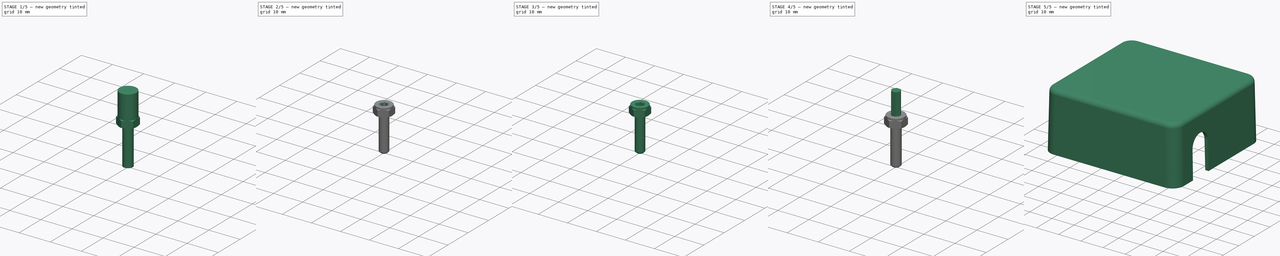
[diagram: build sequence overview — one tinted view per stage of 5, left to right]
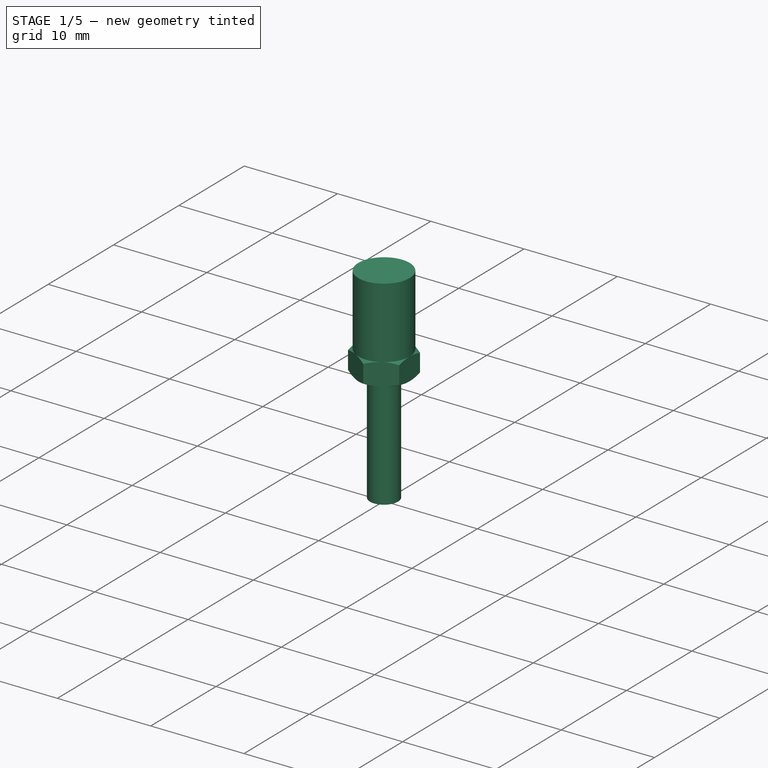
[diagram: stage 1 of 5 — iso view after this stage's code; geometry added in this stage tinted green]
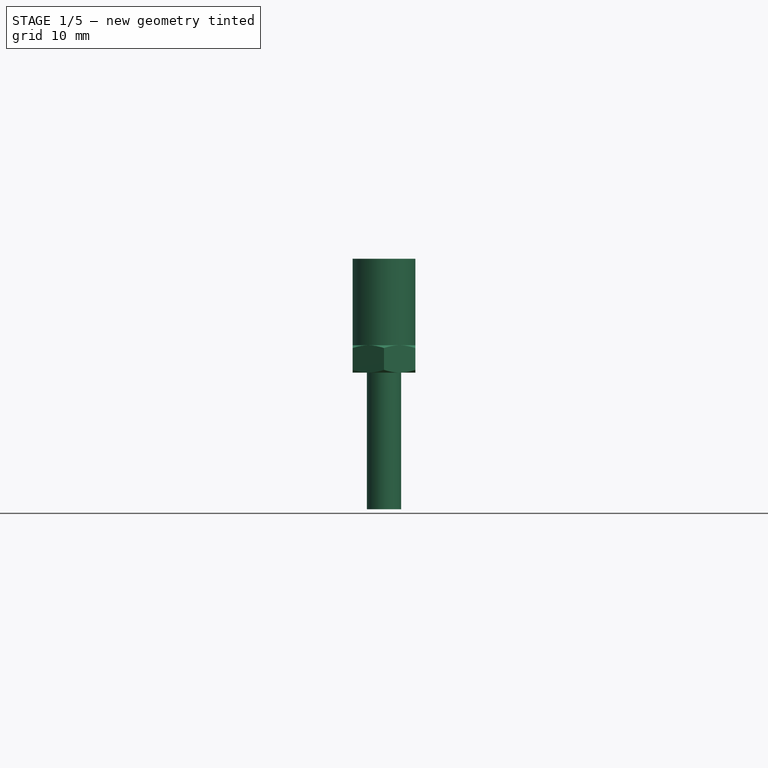
[diagram: stage 1 of 5 — front view after this stage's code; geometry added in this stage tinted green]
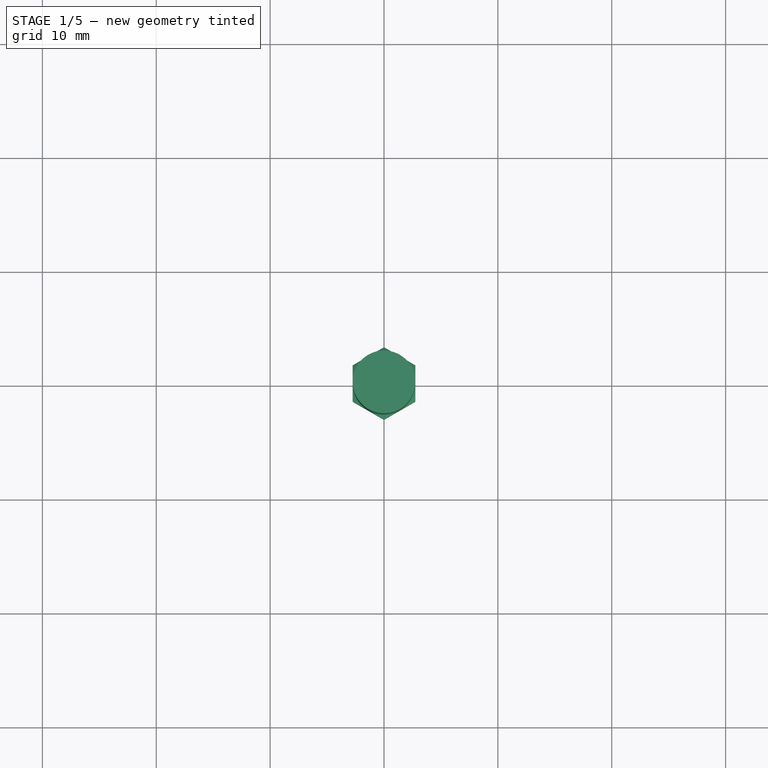
[diagram: stage 1 of 5 — top view after this stage's code; geometry added in this stage tinted green]
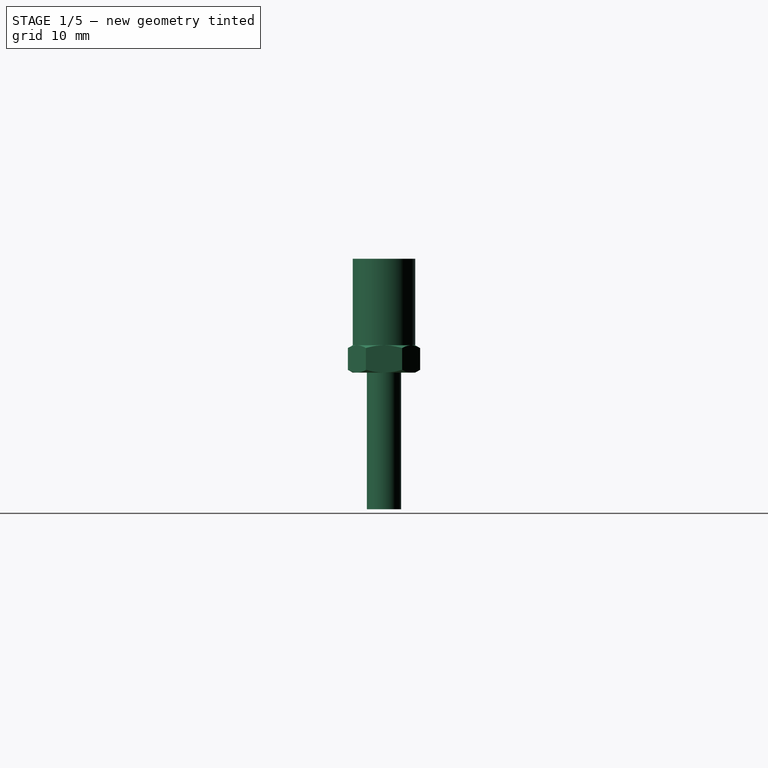
[diagram: stage 1 of 5 — right view after this stage's code; geometry added in this stage tinted green]
FCSTD DOCUMENT  (FreeCAD 0.18.4R)
Label: MA_TIA_CAD
License: Public Domain
LicenseURL: http://en.wikipedia.org/wiki/Public_domain
objects: Part::Feature×48, Sketcher::SketchObject×20, App::Part×11, PartDesign::Revolution×9, PartDesign::Pocket×9, Part::Chamfer×6, Part::Cut×4, PartDesign::Chamfer×3, PartDesign::CoordinateSystem×1, PartDesign::Pad×1, PartDesign::Body×1
note: 121 computed .brp shape members not serialized (recipe doc carries the construction recipe); baked Part::Feature solids carry a one-line shape summary decoded from their .brp

FEATURE [App::Part] Part003  label="M3_Mutter001"
  Group = -> [Sketch007,Sketch011,Sketch012,Pocket004,Revolution005,Pocket005,Chamfer005]
  Origin = -> Origin009
  Placement = pos=(3.6,17.3,0) rot=(0,0,1;0rad)
FEATURE [Sketcher::SketchObject] Sketch013
  MapMode = 5
  Placement = pos=(0,0,0) rot=(1,0,0;1.5708rad)
  sketch-geometry (6):
    g0: LineSegment StartX=0 StartY=2.4 StartZ=0 EndX=2.75 EndY=2.4 EndZ=0
    g1: LineSegment StartX=3.175 StartY=0.245374 StartZ=0 EndX=2.75 EndY=0 EndZ=0
    g2: LineSegment StartX=2.75 StartY=0 StartZ=0 EndX=0 EndY=0 EndZ=0
    g3: LineSegment StartX=0 StartY=0 StartZ=0 EndX=0 EndY=2.4 EndZ=0
    g4: LineSegment StartX=2.75 StartY=2.4 StartZ=0 EndX=3.175 EndY=2.15463 EndZ=0
    g5: LineSegment StartX=3.175 StartY=0.245374 StartZ=0 EndX=3.175 EndY=2.15463 EndZ=0
  constraints (17):
    c: Horizontal(g0)
    c: Coincident(g1,g2)
    c: Horizontal(g2)
    c: Coincident(g2,g3)
    c: Coincident(g3,g0)
    c: DistanceY(g3) = 2.4
    c: Vertical(g3)
    c: Coincident(g2,g-1)
    c: Angle(g1,g-1) = 2.61799
    c: Equal(g0,g2)
    c: DistanceX(g2) = -2.75
    c: DistanceX(g1) = 3.175
    c: Coincident(g4,g0)
    c: Angle(g0,g4) = 2.61799
    c: Coincident(g5,g4)
    c: Vertical(g5)
    c: Coincident(g5,g1)
FEATURE [Sketcher::SketchObject] Sketch015  label="Sketch014"
  MapMode = 5
  Placement = pos=(0,0,0) rot=(1,0,0;1.5708rad)
  sketch-geometry (4):
    g0: LineSegment StartX=0 StartY=0.29908 StartZ=0 EndX=2.75 EndY=1.3 EndZ=0
    g1: LineSegment StartX=2.75 StartY=1.3 StartZ=0 EndX=2.75 EndY=10 EndZ=0
    g2: LineSegment StartX=2.75 StartY=10 StartZ=0 EndX=0 EndY=10 EndZ=0
    g3: LineSegment StartX=0 StartY=10 StartZ=0 EndX=0 EndY=0.29908 EndZ=0
  constraints (12):
    c: Coincident(g0,g1)
    c: Vertical(g1)
    c: Coincident(g1,g2)
    c: Horizontal(g2)
    c: Coincident(g2,g3)
    c: Vertical(g3)
    c: Coincident(g0,g3)
    c: DistanceX(g2) = -2.75
    c: PointOnObject(g0,g-2)
    c: DistanceY(g-1,g0) = 1.3
    c: DistanceY(g2) = 10
    c: Angle(g0,g3) = 1.22173
FEATURE [PartDesign::Revolution] Revolution006
  Angle = 360
  Axis = (0,0,1)
  Base = (0,0,0)
  Placement = pos=(0,0,0) rot=(1,0,0;1.5708rad)
  Profile = -> Sketch015
  ReferenceAxis = -> Sketch015 [V_Axis]
  Reversed = true
FEATURE [PartDesign::Revolution] Revolution007  label="main-body002"
  Angle = 360
  Axis = (0,0,1)
  Base = (0,0,0)
  Placement = pos=(0,0,0) rot=(1,0,0;1.5708rad)
  Profile = -> Sketch016
  ReferenceAxis = -> Sketch016 [V_Axis]
  Reversed = true
FEATURE [App::Part] Part004  label="M3_Schraube002"
  Group = -> [Chamfer006,Chamfer007,Sketch014,Sketch015,Sketch016,Cut003,Pocket006,Revolution007,Revolution006]
  Origin = -> Origin010
  Placement = pos=(16.2,14.5,-4.2) rot=(1,0,0;3.14159rad)
FEATURE [PartDesign::Revolution] Revolution008
  Angle = 360
  Axis = (0,0,1)
  Base = (0,0,0)
  Placement = pos=(0,0,0) rot=(1,0,0;1.5708rad)
  Profile = -> Sketch013
  ReferenceAxis = -> Sketch013 [V_Axis]
FEATURE [Sketcher::SketchObject] Sketch018  label="Hexagon005"
  MapMode = 5
  Placement = pos=(0,3e-16,2.4) rot=(0,0,1;3.14159rad)
  Support = -> [Revolution008]
  sketch-geometry (9):
    g0: LineSegment StartX=-2.75 StartY=1.58771 StartZ=0 EndX=0 EndY=3.17543 EndZ=0
    g1: LineSegment StartX=0 StartY=3.17543 StartZ=0 EndX=2.75 EndY=1.58771 EndZ=0
    g2: LineSegment StartX=2.75 StartY=1.58771 StartZ=0 EndX=2.75 EndY=-1.58771 EndZ=0
    g3: LineSegment StartX=2.75 StartY=-1.58771 StartZ=0 EndX=0 EndY=-3.17543 EndZ=0
    g4: LineSegment StartX=0 StartY=-3.17543 StartZ=0 EndX=-2.75 EndY=-1.58771 EndZ=0
    g5: LineSegment StartX=-2.75 StartY=-1.58771 StartZ=0 EndX=-2.75 EndY=1.58771 EndZ=0
    g6: Circle [constr] CenterX=0 CenterY=0 CenterZ=0 NormalX=0 NormalY=0 NormalZ=1 AngleXU=0 Radius=3.17543
    g7: Circle CenterX=0 CenterY=0 CenterZ=0 NormalX=0 NormalY=0 NormalZ=1 AngleXU=0 Radius=4.17543
    g8: LineSegment [constr] StartX=0 StartY=4.17543 StartZ=0 EndX=0 EndY=3.17543 EndZ=0
  constraints (26):
    c: Coincident(g0,g1)
    c: Coincident(g1,g2)
    c: Coincident(g2,g3)
    c: Coincident(g3,g4)
    c: Coincident(g4,g5)
    c: Coincident(g5,g0)
    c: Equal(g5,g0)
    c: Equal(g0,g4)
    c: Equal(g4,g3)
    c: Equal(g3,g2)
    c: Equal(g2,g1)
    c: PointOnObject(g0,g6)
    c: PointOnObject(g2,g6)
    c: PointOnObject(g1,g6)
    c: PointOnObject(g4,g6)
    c: PointOnObject(g0,g6)
    c: Coincident(g6,g-1)
    c: Vertical(g5)
    c: Vertical(g2)
    c: DistanceX(g0,g1) = 5.5
    c: Coincident(g7,g-1)
    c: PointOnObject(g8,g6)
    c: Vertical(g8)
    c: PointOnObject(g8,g7)
    c: PointOnObject(g8,g-2)
    c: DistanceY(g8) = -1
FEATURE [PartDesign::Pocket] Pocket007
  Length = 5
  Length2 = 100
  Placement = pos=(0,0,0) rot=(1,0,0;1.5708rad)
  Profile = -> Sketch018
  Type = 1
FEATURE [Sketcher::SketchObject] Sketch017
  MapMode = 5
  Placement = pos=(0,3e-16,2.4) rot=(0,0,1;3.14159rad)
  Support = -> [Pocket007]
  sketch-geometry (1):
    g0: Circle CenterX=0 CenterY=0 CenterZ=0 NormalX=0 NormalY=0 NormalZ=1 AngleXU=0 Radius=1.5
  constraints (2):
    c: Coincident(g0,g-1)
    c: Radius(g0) = 1.5
FEATURE [PartDesign::Pocket] Pocket008
  Length = 5
  Length2 = 100
  Placement = pos=(0,0,0) rot=(1,0,0;1.5708rad)
  Profile = -> Sketch017
  Type = 1
FEATURE [PartDesign::Chamfer] Chamfer008
  Base = -> Pocket008 [Edge40,Edge15]
  Placement = pos=(0,0,0) rot=(1,0,0;1.5708rad)
  Size = 0.2
FEATURE [App::Part] Part005  label="M3_Mutter002"
  Group = -> [Sketch013,Sketch017,Sketch018,Pocket007,Revolution008,Pocket008,Chamfer008]
  Origin = -> Origin011
  Placement = pos=(16.2,14.5,5) rot=(0,0,1;0rad)
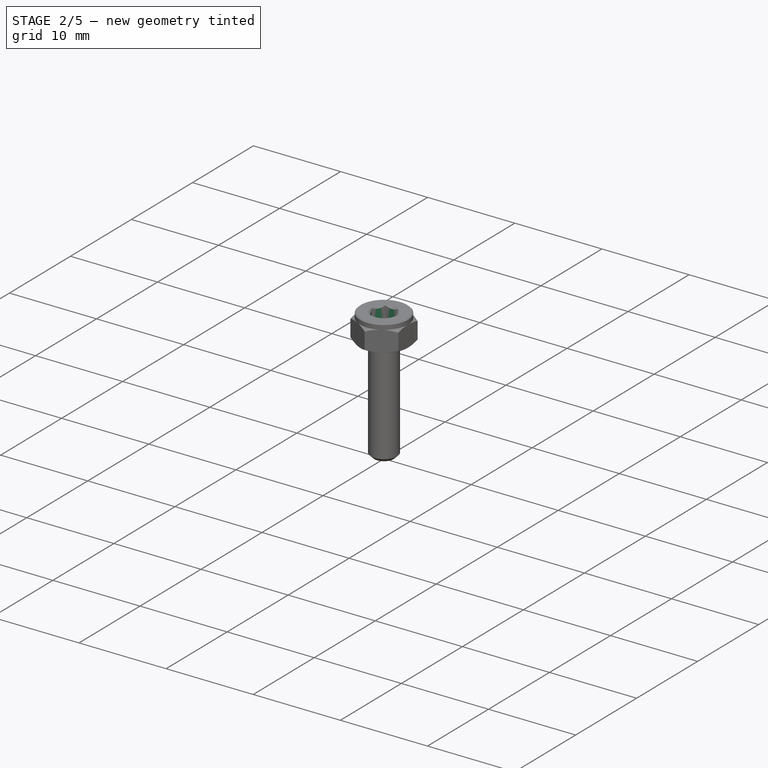
[diagram: stage 2 of 5 — iso view after this stage's code; geometry added in this stage tinted green]
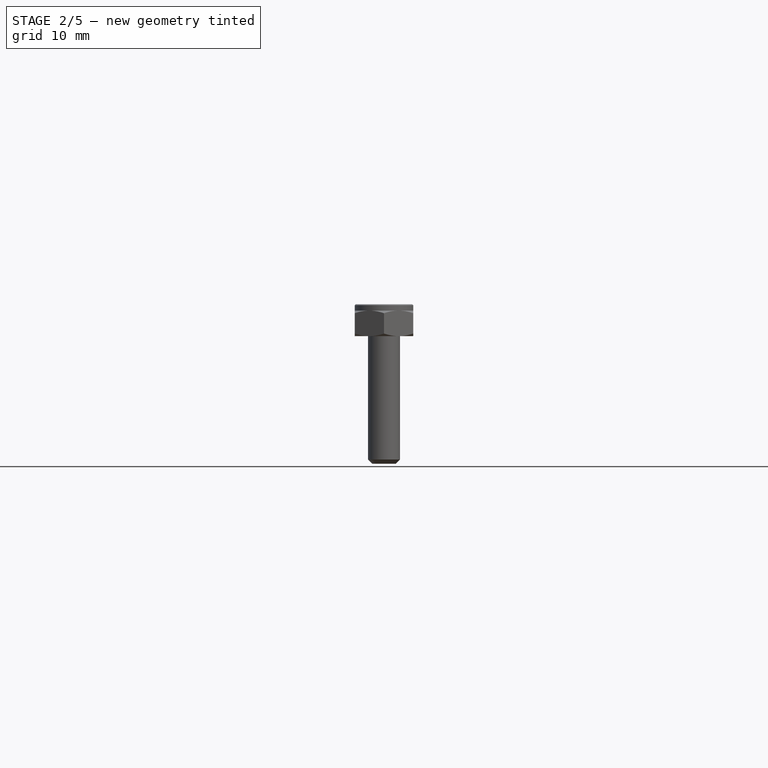
[diagram: stage 2 of 5 — front view after this stage's code; geometry added in this stage tinted green]
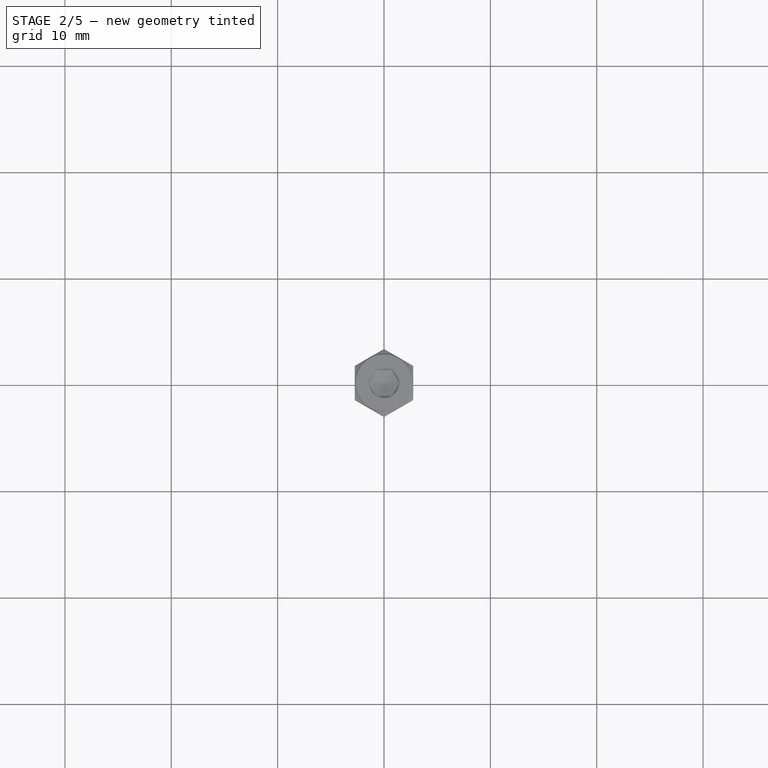
[diagram: stage 2 of 5 — top view after this stage's code; geometry added in this stage tinted green]
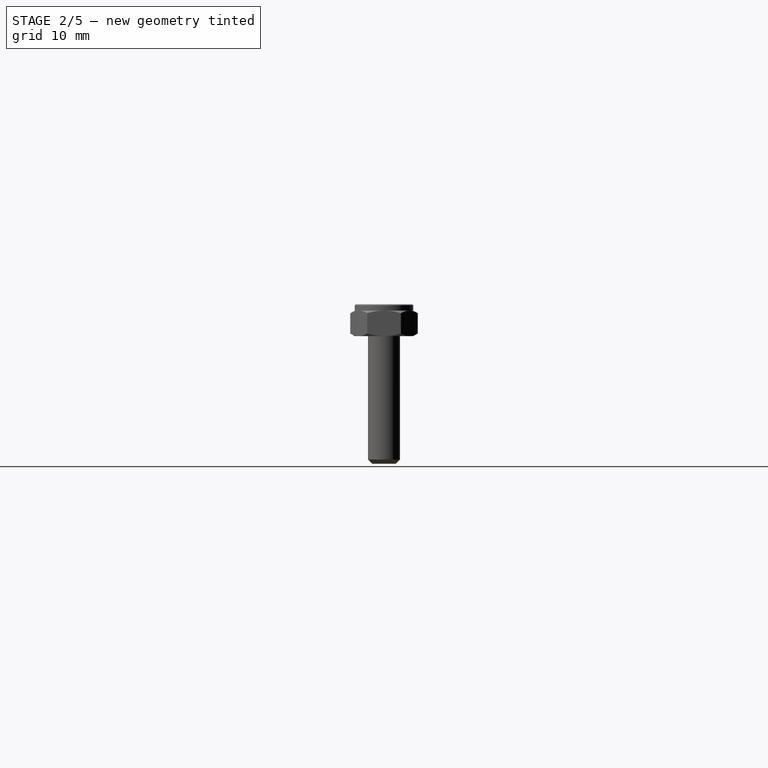
[diagram: stage 2 of 5 — right view after this stage's code; geometry added in this stage tinted green]
FEATURE [App::Part] Part002  label="M3_Schraube001"
  Group = -> [Chamfer003,Chamfer004,Sketch008,Sketch009,Sketch010,Cut002,Pocket003,Revolution004,Revolution003]
  Origin = -> Origin008
  Placement = pos=(3.6,17.3,-4.2) rot=(1,0,0;3.14159rad)
FEATURE [PartDesign::Revolution] Revolution005
  Angle = 360
  Axis = (0,0,1)
  Base = (0,0,0)
  Placement = pos=(0,0,0) rot=(1,0,0;1.5708rad)
  Profile = -> Sketch007
  ReferenceAxis = -> Sketch007 [V_Axis]
FEATURE [Sketcher::SketchObject] Sketch012  label="Hexagon003"
  MapMode = 5
  Placement = pos=(0,3e-16,2.4) rot=(0,0,1;3.14159rad)
  Support = -> [Revolution005]
  sketch-geometry (9):
    g0: LineSegment StartX=-2.75 StartY=1.58771 StartZ=0 EndX=0 EndY=3.17543 EndZ=0
    g1: LineSegment StartX=0 StartY=3.17543 StartZ=0 EndX=2.75 EndY=1.58771 EndZ=0
    g2: LineSegment StartX=2.75 StartY=1.58771 StartZ=0 EndX=2.75 EndY=-1.58771 EndZ=0
    g3: LineSegment StartX=2.75 StartY=-1.58771 StartZ=0 EndX=0 EndY=-3.17543 EndZ=0
    g4: LineSegment StartX=0 StartY=-3.17543 StartZ=0 EndX=-2.75 EndY=-1.58771 EndZ=0
    g5: LineSegment StartX=-2.75 StartY=-1.58771 StartZ=0 EndX=-2.75 EndY=1.58771 EndZ=0
    g6: Circle [constr] CenterX=0 CenterY=0 CenterZ=0 NormalX=0 NormalY=0 NormalZ=1 AngleXU=0 Radius=3.17543
    g7: Circle CenterX=0 CenterY=0 CenterZ=0 NormalX=0 NormalY=0 NormalZ=1 AngleXU=0 Radius=4.17543
    g8: LineSegment [constr] StartX=0 StartY=4.17543 StartZ=0 EndX=0 EndY=3.17543 EndZ=0
  constraints (26):
    c: Coincident(g0,g1)
    c: Coincident(g1,g2)
    c: Coincident(g2,g3)
    c: Coincident(g3,g4)
    c: Coincident(g4,g5)
    c: Coincident(g5,g0)
    c: Equal(g5,g0)
    c: Equal(g0,g4)
    c: Equal(g4,g3)
    c: Equal(g3,g2)
    c: Equal(g2,g1)
    c: PointOnObject(g0,g6)
    c: PointOnObject(g2,g6)
    c: PointOnObject(g1,g6)
    c: PointOnObject(g4,g6)
    c: PointOnObject(g0,g6)
    c: Coincident(g6,g-1)
    c: Vertical(g5)
    c: Vertical(g2)
    c: DistanceX(g0,g1) = 5.5
    c: Coincident(g7,g-1)
    c: PointOnObject(g8,g6)
    c: Vertical(g8)
    c: PointOnObject(g8,g7)
    c: PointOnObject(g8,g-2)
    c: DistanceY(g8) = -1
FEATURE [PartDesign::Pocket] Pocket004
  Length = 5
  Length2 = 100
  Placement = pos=(0,0,0) rot=(1,0,0;1.5708rad)
  Profile = -> Sketch012
  Type = 1
FEATURE [Sketcher::SketchObject] Sketch011
  MapMode = 5
  Placement = pos=(0,3e-16,2.4) rot=(0,0,1;3.14159rad)
  Support = -> [Pocket004]
  sketch-geometry (1):
    g0: Circle CenterX=0 CenterY=0 CenterZ=0 NormalX=0 NormalY=0 NormalZ=1 AngleXU=0 Radius=1.5
  constraints (2):
    c: Coincident(g0,g-1)
    c: Radius(g0) = 1.5
FEATURE [PartDesign::Pocket] Pocket005
  Length = 5
  Length2 = 100
  Placement = pos=(0,0,0) rot=(1,0,0;1.5708rad)
  Profile = -> Sketch011
  Type = 1
FEATURE [Sketcher::SketchObject] Sketch014  label="Hexagon004"
  ExternalGeometry = -> [Revolution006]
  MapMode = 5
  Placement = pos=(0,2.2e-15,10) rot=(0,0,1;3.14159rad)
  Support = -> [Revolution006]
  sketch-geometry (9):
    g0: LineSegment StartX=-0.721688 StartY=1.25 StartZ=0 EndX=0.721688 EndY=1.25 EndZ=0
    g1: LineSegment StartX=0.721688 StartY=1.25 StartZ=0 EndX=1.44338 EndY=0 EndZ=0
    g2: LineSegment StartX=1.44338 StartY=0 StartZ=0 EndX=0.721688 EndY=-1.25 EndZ=0
    g3: LineSegment StartX=0.721688 StartY=-1.25 StartZ=0 EndX=-0.721688 EndY=-1.25 EndZ=0
    g4: LineSegment StartX=-0.721688 StartY=-1.25 StartZ=0 EndX=-1.44338 EndY=0 EndZ=0
    g5: LineSegment StartX=-1.44338 StartY=0 StartZ=0 EndX=-0.721688 EndY=1.25 EndZ=0
    g6: Circle [constr] CenterX=0 CenterY=0 CenterZ=0 NormalX=0 NormalY=0 NormalZ=1 AngleXU=0 Radius=1.44338
    g7: Circle CenterX=0 CenterY=0 CenterZ=0 NormalX=0 NormalY=0 NormalZ=1 AngleXU=0 Radius=3.75
    g8: LineSegment [constr] StartX=0 StartY=3.75 StartZ=0 EndX=0 EndY=2.75 EndZ=0
  constraints (26):
    c: Horizontal(g0)
    c: Coincident(g0,g1)
    c: Coincident(g1,g2)
    c: Coincident(g2,g3)
    c: Horizontal(g3)
    c: Coincident(g3,g4)
    c: Coincident(g4,g5)
    c: Coincident(g5,g0)
    c: Equal(g5,g0)
    c: Equal(g0,g4)
    c: Equal(g4,g3)
    c: Equal(g3,g2)
    c: Equal(g2,g1)
    c: PointOnObject(g0,g6)
    c: PointOnObject(g2,g6)
    c: PointOnObject(g1,g6)
    c: PointOnObject(g4,g6)
    c: PointOnObject(g0,g6)
    c: DistanceY(g3,g0) = 2.5
    c: Coincident(g6,g-1)
    c: Coincident(g7,g-1)
    c: Vertical(g8)
    c: PointOnObject(g8,g7)
    c: PointOnObject(g8,g-2)
    c: DistanceY(g8) = -1
    c: PointOnObject(g8,g-3)
FEATURE [Sketcher::SketchObject] Sketch016
  MapMode = 5
  Placement = pos=(0,0,0) rot=(1,0,0;1.5708rad)
  sketch-geometry (7):
    g0: LineSegment StartX=1.45 StartY=3 StartZ=0 EndX=2.75 EndY=3 EndZ=0
    g1: LineSegment StartX=2.75 StartY=3 StartZ=0 EndX=2.75 EndY=0 EndZ=0
    g2: LineSegment StartX=2.75 StartY=0 StartZ=0 EndX=1.5 EndY=0 EndZ=0
    g3: LineSegment StartX=1.5 StartY=0 StartZ=0 EndX=1.5 EndY=-12 EndZ=0
    g4: LineSegment StartX=1.5 StartY=-12 StartZ=0 EndX=0 EndY=-12 EndZ=0
    g5: LineSegment StartX=0 StartY=-12 StartZ=0 EndX=0 EndY=1.55 EndZ=0
    g6: LineSegment StartX=0 StartY=1.55 StartZ=0 EndX=1.45 EndY=3 EndZ=0
  constraints (21):
    c: Horizontal(g0)
    c: Coincident(g0,g1)
    c: Vertical(g1)
    c: Coincident(g1,g2)
    c: Horizontal(g2)
    c: Coincident(g2,g3)
    c: Vertical(g3)
    c: Coincident(g3,g4)
    c: Horizontal(g4)
    c: Coincident(g4,g5)
    c: Vertical(g5)
    c: Coincident(g0,g6)
    c: DistanceX(g4) = -1.5
    c: DistanceY(g1,g3) = -12
    c: Angle(g6,g0) = 2.35619
    c: DistanceY(g1) = -3
    c: DistanceX(g0,g5) = -2.75
    c: DistanceX(g0,g5) = -1.45
    c: PointOnObject(g1,g-1)
    c: PointOnObject(g5,g-2)
    c: Coincident(g6,g5)
FEATURE [PartDesign::Pocket] Pocket006
  Length = 5
  Length2 = 100
  Placement = pos=(0,0,0) rot=(1,0,0;1.5708rad)
  Profile = -> Sketch014
  Type = 1
FEATURE [Part::Cut] Cut003
  Base = -> Revolution007
  Tool = -> Pocket006
FEATURE [Part::Chamfer] Chamfer007
  Base = -> Cut003
  Edges = 1 edges r=0.4: [Edge27]
FEATURE [Part::Chamfer] Chamfer006
  Base = -> Chamfer007
  Edges = 2 edges r=0.1: [Edge6,Edge7]
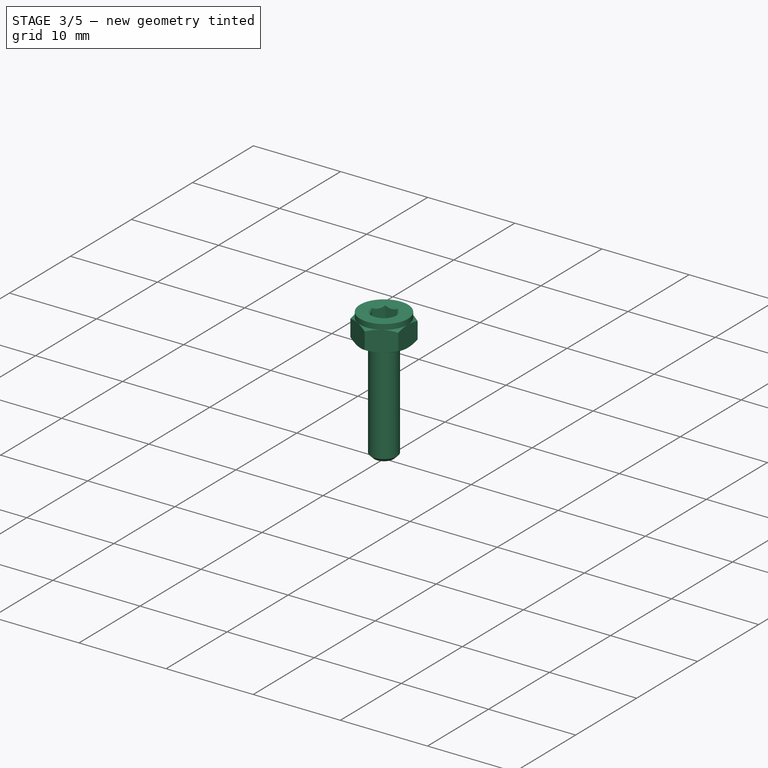
[diagram: stage 3 of 5 — iso view after this stage's code; geometry added in this stage tinted green]
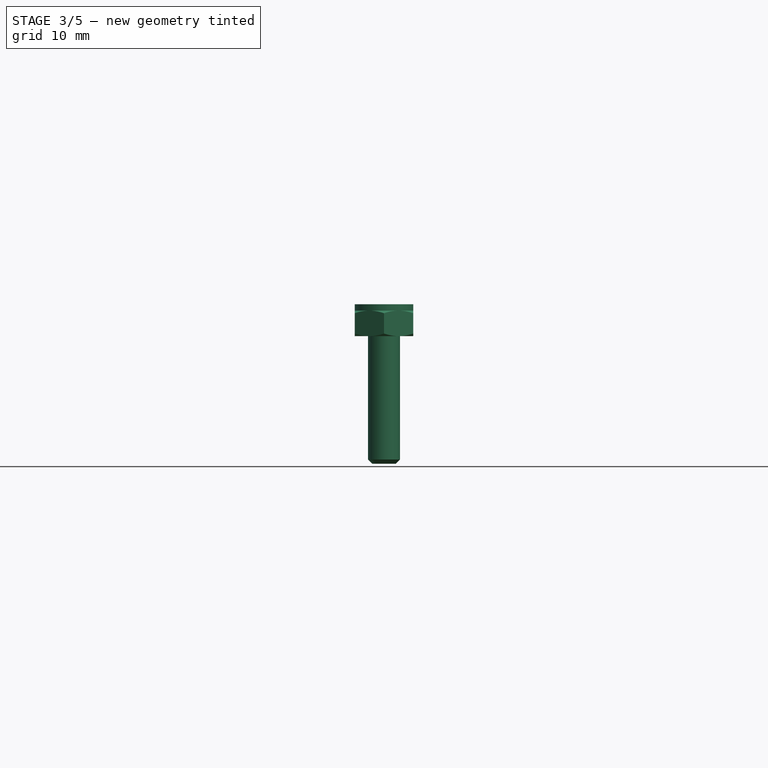
[diagram: stage 3 of 5 — front view after this stage's code; geometry added in this stage tinted green]
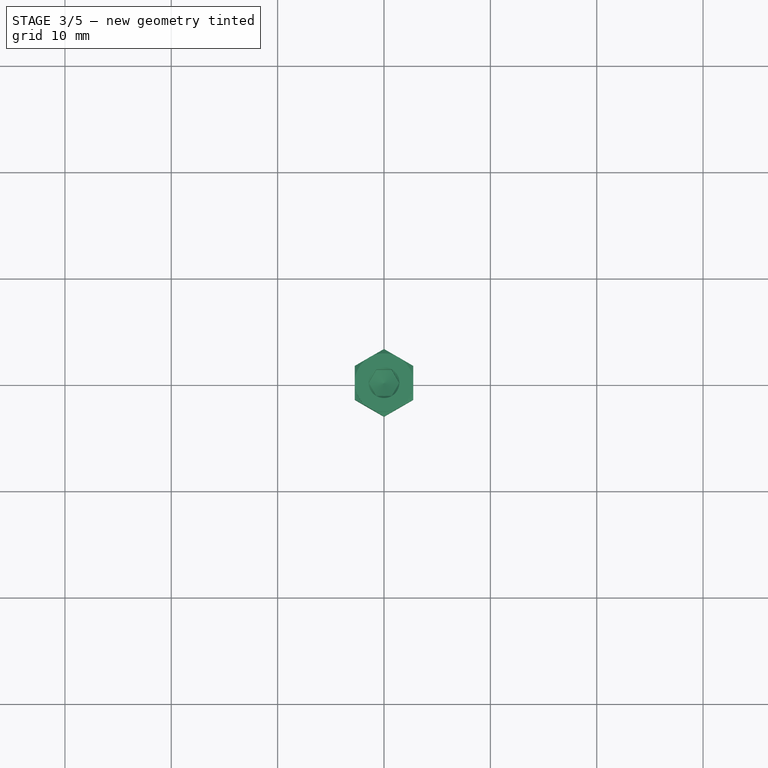
[diagram: stage 3 of 5 — top view after this stage's code; geometry added in this stage tinted green]
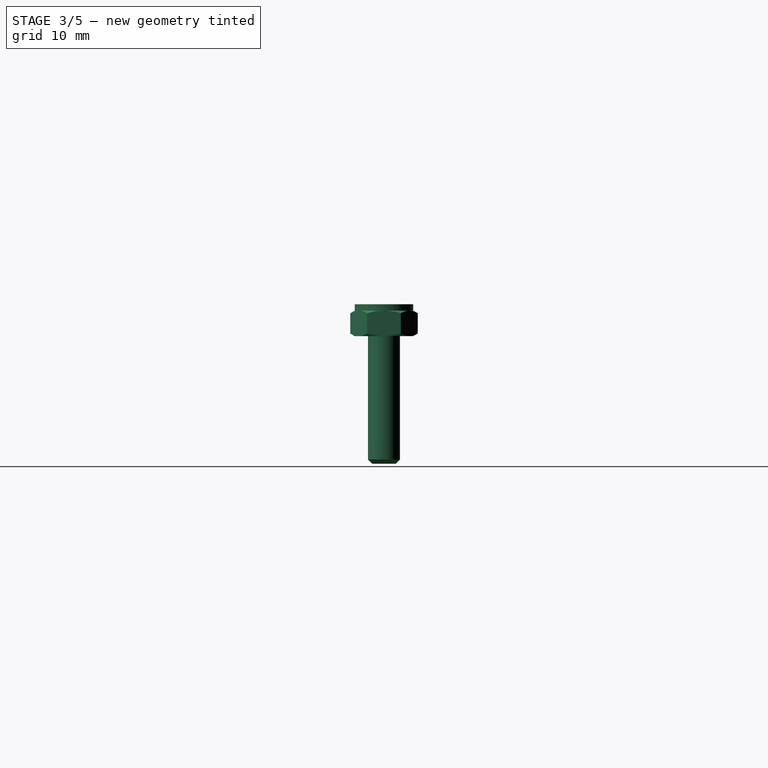
[diagram: stage 3 of 5 — right view after this stage's code; geometry added in this stage tinted green]
FEATURE [App::Part] Part001  label="M3_Mutter"
  Group = -> [Sketch004,Sketch006,Sketch005,Pocket001,Revolution002,Pocket002,Chamfer002]
  Origin = -> Origin007
  Placement = pos=(-13.7,-17.8,2.5) rot=(1,0,0;3.14159rad)
FEATURE [Sketcher::SketchObject] Sketch007
  MapMode = 5
  Placement = pos=(0,0,0) rot=(1,0,0;1.5708rad)
  sketch-geometry (6):
    g0: LineSegment StartX=0 StartY=2.4 StartZ=0 EndX=2.75 EndY=2.4 EndZ=0
    g1: LineSegment StartX=3.175 StartY=0.245374 StartZ=0 EndX=2.75 EndY=0 EndZ=0
    g2: LineSegment StartX=2.75 StartY=0 StartZ=0 EndX=0 EndY=0 EndZ=0
    g3: LineSegment StartX=0 StartY=0 StartZ=0 EndX=0 EndY=2.4 EndZ=0
    g4: LineSegment StartX=2.75 StartY=2.4 StartZ=0 EndX=3.175 EndY=2.15463 EndZ=0
    g5: LineSegment StartX=3.175 StartY=0.245374 StartZ=0 EndX=3.175 EndY=2.15463 EndZ=0
  constraints (17):
    c: Horizontal(g0)
    c: Coincident(g1,g2)
    c: Horizontal(g2)
    c: Coincident(g2,g3)
    c: Coincident(g3,g0)
    c: DistanceY(g3) = 2.4
    c: Vertical(g3)
    c: Coincident(g2,g-1)
    c: Angle(g1,g-1) = 2.61799
    c: Equal(g0,g2)
    c: DistanceX(g2) = -2.75
    c: DistanceX(g1) = 3.175
    c: Coincident(g4,g0)
    c: Angle(g0,g4) = 2.61799
    c: Coincident(g5,g4)
    c: Vertical(g5)
    c: Coincident(g5,g1)
FEATURE [Sketcher::SketchObject] Sketch009  label="Sketch008"
  MapMode = 5
  Placement = pos=(0,0,0) rot=(1,0,0;1.5708rad)
  sketch-geometry (4):
    g0: LineSegment StartX=0 StartY=0.29908 StartZ=0 EndX=2.75 EndY=1.3 EndZ=0
    g1: LineSegment StartX=2.75 StartY=1.3 StartZ=0 EndX=2.75 EndY=10 EndZ=0
    g2: LineSegment StartX=2.75 StartY=10 StartZ=0 EndX=0 EndY=10 EndZ=0
    g3: LineSegment StartX=0 StartY=10 StartZ=0 EndX=0 EndY=0.29908 EndZ=0
  constraints (12):
    c: Coincident(g0,g1)
    c: Vertical(g1)
    c: Coincident(g1,g2)
    c: Horizontal(g2)
    c: Coincident(g2,g3)
    c: Vertical(g3)
    c: Coincident(g0,g3)
    c: DistanceX(g2) = -2.75
    c: PointOnObject(g0,g-2)
    c: DistanceY(g-1,g0) = 1.3
    c: DistanceY(g2) = 10
    c: Angle(g0,g3) = 1.22173
FEATURE [PartDesign::Revolution] Revolution003
  Angle = 360
  Axis = (0,0,1)
  Base = (0,0,0)
  Placement = pos=(0,0,0) rot=(1,0,0;1.5708rad)
  Profile = -> Sketch009
  ReferenceAxis = -> Sketch009 [V_Axis]
  Reversed = true
FEATURE [Sketcher::SketchObject] Sketch008  label="Hexagon002"
  ExternalGeometry = -> [Revolution003]
  MapMode = 5
  Placement = pos=(0,2.2e-15,10) rot=(0,0,1;3.14159rad)
  Support = -> [Revolution003]
  sketch-geometry (9):
    g0: LineSegment StartX=-0.721688 StartY=1.25 StartZ=0 EndX=0.721688 EndY=1.25 EndZ=0
    g1: LineSegment StartX=0.721688 StartY=1.25 StartZ=0 EndX=1.44338 EndY=0 EndZ=0
    g2: LineSegment StartX=1.44338 StartY=0 StartZ=0 EndX=0.721688 EndY=-1.25 EndZ=0
    g3: LineSegment StartX=0.721688 StartY=-1.25 StartZ=0 EndX=-0.721688 EndY=-1.25 EndZ=0
    g4: LineSegment StartX=-0.721688 StartY=-1.25 StartZ=0 EndX=-1.44338 EndY=0 EndZ=0
    g5: LineSegment StartX=-1.44338 StartY=0 StartZ=0 EndX=-0.721688 EndY=1.25 EndZ=0
    g6: Circle [constr] CenterX=0 CenterY=0 CenterZ=0 NormalX=0 NormalY=0 NormalZ=1 AngleXU=0 Radius=1.44338
    g7: Circle CenterX=0 CenterY=0 CenterZ=0 NormalX=0 NormalY=0 NormalZ=1 AngleXU=0 Radius=3.75
    g8: LineSegment [constr] StartX=0 StartY=3.75 StartZ=0 EndX=0 EndY=2.75 EndZ=0
  constraints (26):
    c: Horizontal(g0)
    c: Coincident(g0,g1)
    c: Coincident(g1,g2)
    c: Coincident(g2,g3)
    c: Horizontal(g3)
    c: Coincident(g3,g4)
    c: Coincident(g4,g5)
    c: Coincident(g5,g0)
    c: Equal(g5,g0)
    c: Equal(g0,g4)
    c: Equal(g4,g3)
    c: Equal(g3,g2)
    c: Equal(g2,g1)
    c: PointOnObject(g0,g6)
    c: PointOnObject(g2,g6)
    c: PointOnObject(g1,g6)
    c: PointOnObject(g4,g6)
    c: PointOnObject(g0,g6)
    c: DistanceY(g3,g0) = 2.5
    c: Coincident(g6,g-1)
    c: Coincident(g7,g-1)
    c: Vertical(g8)
    c: PointOnObject(g8,g7)
    c: PointOnObject(g8,g-2)
    c: DistanceY(g8) = -1
    c: PointOnObject(g8,g-3)
FEATURE [Sketcher::SketchObject] Sketch010
  MapMode = 5
  Placement = pos=(0,0,0) rot=(1,0,0;1.5708rad)
  sketch-geometry (7):
    g0: LineSegment StartX=1.45 StartY=3 StartZ=0 EndX=2.75 EndY=3 EndZ=0
    g1: LineSegment StartX=2.75 StartY=3 StartZ=0 EndX=2.75 EndY=0 EndZ=0
    g2: LineSegment StartX=2.75 StartY=0 StartZ=0 EndX=1.5 EndY=0 EndZ=0
    g3: LineSegment StartX=1.5 StartY=0 StartZ=0 EndX=1.5 EndY=-12 EndZ=0
    g4: LineSegment StartX=1.5 StartY=-12 StartZ=0 EndX=0 EndY=-12 EndZ=0
    g5: LineSegment StartX=0 StartY=-12 StartZ=0 EndX=0 EndY=1.55 EndZ=0
    g6: LineSegment StartX=0 StartY=1.55 StartZ=0 EndX=1.45 EndY=3 EndZ=0
  constraints (21):
    c: Horizontal(g0)
    c: Coincident(g0,g1)
    c: Vertical(g1)
    c: Coincident(g1,g2)
    c: Horizontal(g2)
    c: Coincident(g2,g3)
    c: Vertical(g3)
    c: Coincident(g3,g4)
    c: Horizontal(g4)
    c: Coincident(g4,g5)
    c: Vertical(g5)
    c: Coincident(g0,g6)
    c: DistanceX(g4) = -1.5
    c: DistanceY(g1,g3) = -12
    c: Angle(g6,g0) = 2.35619
    c: DistanceY(g1) = -3
    c: DistanceX(g0,g5) = -2.75
    c: DistanceX(g0,g5) = -1.45
    c: PointOnObject(g1,g-1)
    c: PointOnObject(g5,g-2)
    c: Coincident(g6,g5)
FEATURE [PartDesign::Pocket] Pocket003
  Length = 5
  Length2 = 100
  Placement = pos=(0,0,0) rot=(1,0,0;1.5708rad)
  Profile = -> Sketch008
  Type = 1
FEATURE [PartDesign::Revolution] Revolution004  label="main-body001"
  Angle = 360
  Axis = (0,0,1)
  Base = (0,0,0)
  Placement = pos=(0,0,0) rot=(1,0,0;1.5708rad)
  Profile = -> Sketch010
  ReferenceAxis = -> Sketch010 [V_Axis]
  Reversed = true
FEATURE [Part::Cut] Cut002
  Base = -> Revolution004
  Tool = -> Pocket003
FEATURE [Part::Chamfer] Chamfer004
  Base = -> Cut002
  Edges = 1 edges r=0.4: [Edge27]
FEATURE [PartDesign::Chamfer] Chamfer005
  Base = -> Pocket005 [Edge40,Edge15]
  Placement = pos=(0,0,0) rot=(1,0,0;1.5708rad)
  Size = 0.2
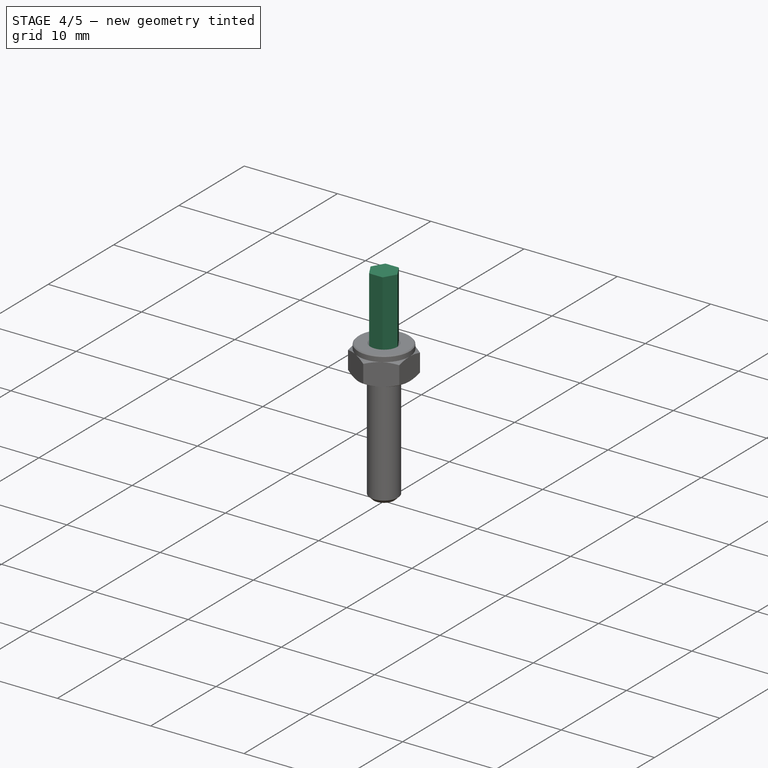
[diagram: stage 4 of 5 — iso view after this stage's code; geometry added in this stage tinted green]
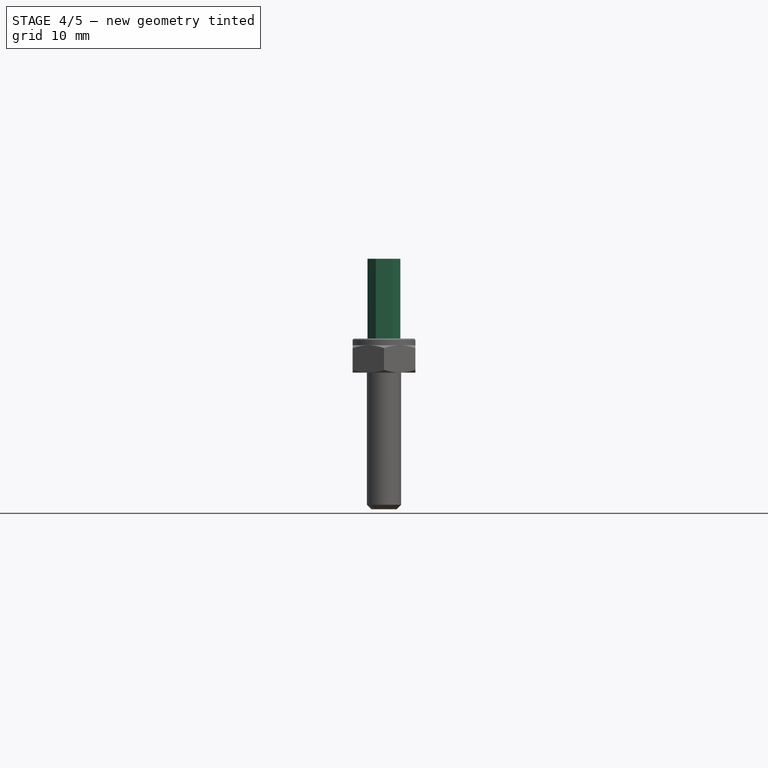
[diagram: stage 4 of 5 — front view after this stage's code; geometry added in this stage tinted green]
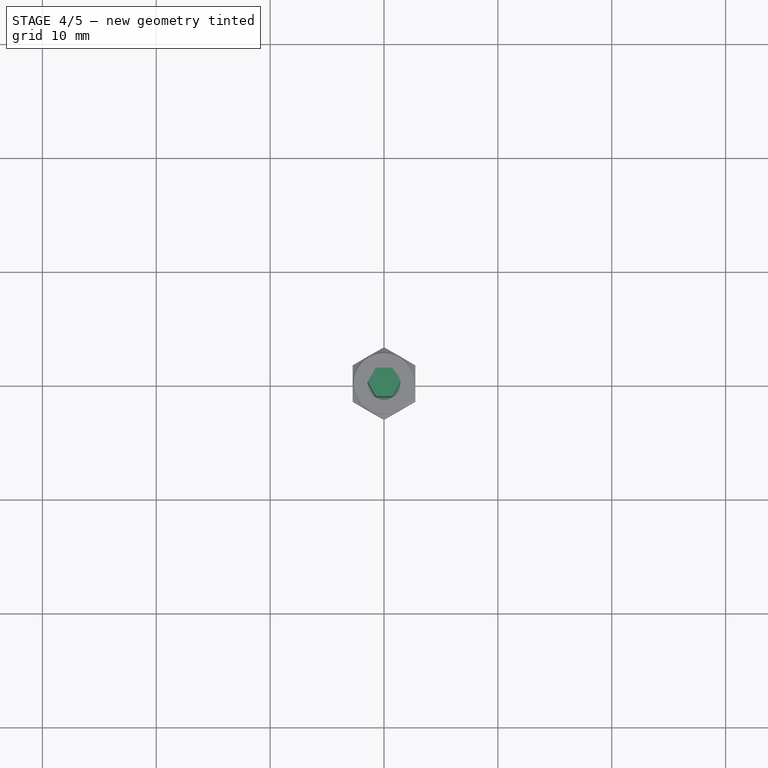
[diagram: stage 4 of 5 — top view after this stage's code; geometry added in this stage tinted green]
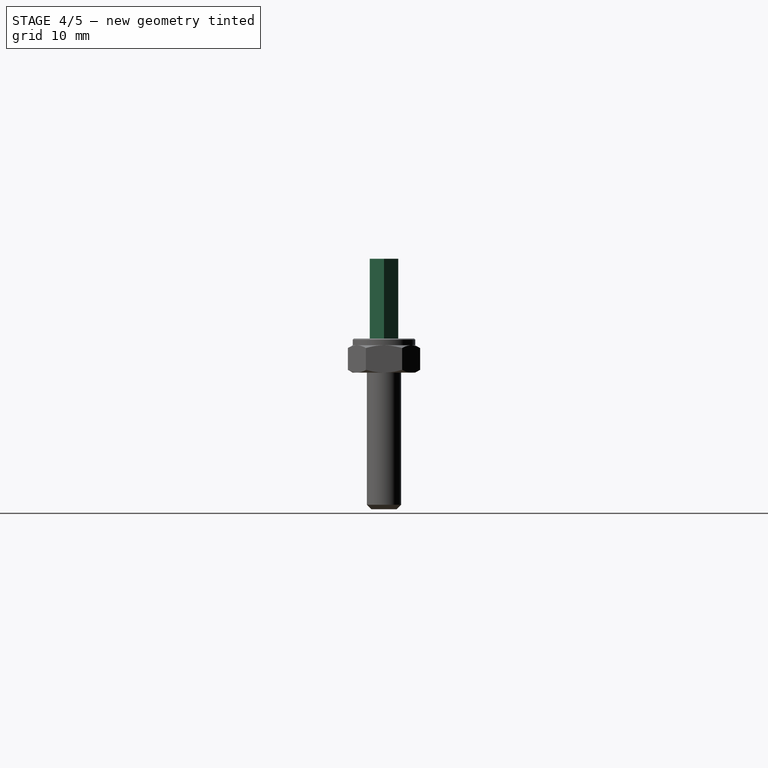
[diagram: stage 4 of 5 — right view after this stage's code; geometry added in this stage tinted green]
FEATURE [Sketcher::SketchObject] Sketch003  label="Sketch002"
  MapMode = 5
  Placement = pos=(0,0,0) rot=(1,0,0;1.5708rad)
  sketch-geometry (4):
    g0: LineSegment StartX=0 StartY=0.29908 StartZ=0 EndX=2.75 EndY=1.3 EndZ=0
    g1: LineSegment StartX=2.75 StartY=1.3 StartZ=0 EndX=2.75 EndY=10 EndZ=0
    g2: LineSegment StartX=2.75 StartY=10 StartZ=0 EndX=0 EndY=10 EndZ=0
    g3: LineSegment StartX=0 StartY=10 StartZ=0 EndX=0 EndY=0.29908 EndZ=0
  constraints (12):
    c: Coincident(g0,g1)
    c: Vertical(g1)
    c: Coincident(g1,g2)
    c: Horizontal(g2)
    c: Coincident(g2,g3)
    c: Vertical(g3)
    c: Coincident(g0,g3)
    c: DistanceX(g2) = -2.75
    c: PointOnObject(g0,g-2)
    c: DistanceY(g-1,g0) = 1.3
    c: DistanceY(g2) = 10
    c: Angle(g0,g3) = 1.22173
FEATURE [PartDesign::Revolution] Revolution001
  Angle = 360
  Axis = (0,0,1)
  Base = (0,0,0)
  Placement = pos=(0,0,0) rot=(1,0,0;1.5708rad)
  Profile = -> Sketch003
  ReferenceAxis = -> Sketch003 [V_Axis]
  Reversed = true
FEATURE [Sketcher::SketchObject] Sketch002  label="Hexagon"
  ExternalGeometry = -> [Revolution001]
  MapMode = 5
  Placement = pos=(0,2.2e-15,10) rot=(0,0,1;3.14159rad)
  Support = -> [Revolution001]
  sketch-geometry (9):
    g0: LineSegment StartX=-0.721688 StartY=1.25 StartZ=0 EndX=0.721688 EndY=1.25 EndZ=0
    g1: LineSegment StartX=0.721688 StartY=1.25 StartZ=0 EndX=1.44338 EndY=0 EndZ=0
    g2: LineSegment StartX=1.44338 StartY=0 StartZ=0 EndX=0.721688 EndY=-1.25 EndZ=0
    g3: LineSegment StartX=0.721688 StartY=-1.25 StartZ=0 EndX=-0.721688 EndY=-1.25 EndZ=0
    g4: LineSegment StartX=-0.721688 StartY=-1.25 StartZ=0 EndX=-1.44338 EndY=0 EndZ=0
    g5: LineSegment StartX=-1.44338 StartY=0 StartZ=0 EndX=-0.721688 EndY=1.25 EndZ=0
    g6: Circle [constr] CenterX=0 CenterY=0 CenterZ=0 NormalX=0 NormalY=0 NormalZ=1 AngleXU=0 Radius=1.44338
    g7: Circle CenterX=0 CenterY=0 CenterZ=0 NormalX=0 NormalY=0 NormalZ=1 AngleXU=0 Radius=3.75
    g8: LineSegment [constr] StartX=0 StartY=3.75 StartZ=0 EndX=0 EndY=2.75 EndZ=0
  constraints (26):
    c: Horizontal(g0)
    c: Coincident(g0,g1)
    c: Coincident(g1,g2)
    c: Coincident(g2,g3)
    c: Horizontal(g3)
    c: Coincident(g3,g4)
    c: Coincident(g4,g5)
    c: Coincident(g5,g0)
    c: Equal(g5,g0)
    c: Equal(g0,g4)
    c: Equal(g4,g3)
    c: Equal(g3,g2)
    c: Equal(g2,g1)
    c: PointOnObject(g0,g6)
    c: PointOnObject(g2,g6)
    c: PointOnObject(g1,g6)
    c: PointOnObject(g4,g6)
    c: PointOnObject(g0,g6)
    c: DistanceY(g3,g0) = 2.5
    c: Coincident(g6,g-1)
    c: Coincident(g7,g-1)
    c: Vertical(g8)
    c: PointOnObject(g8,g7)
    c: PointOnObject(g8,g-2)
    c: DistanceY(g8) = -1
    c: PointOnObject(g8,g-3)
FEATURE [PartDesign::Pocket] Pocket
  Length = 5
  Length2 = 100
  Placement = pos=(0,0,0) rot=(1,0,0;1.5708rad)
  Profile = -> Sketch002
  Type = 1
FEATURE [App::Part] Part  label="M3_Schraube"
  Group = -> [Chamfer001,Chamfer,Sketch002,Sketch003,Sketch001,Cut001,Pocket,Revolution,Revolution001]
  Origin = -> Origin006
  Placement = pos=(-13.7,-17.8,-4.2) rot=(1,0,0;3.14159rad)
FEATURE [Sketcher::SketchObject] Sketch004
  MapMode = 5
  Placement = pos=(0,0,0) rot=(1,0,0;1.5708rad)
  sketch-geometry (6):
    g0: LineSegment StartX=0 StartY=2.4 StartZ=0 EndX=2.75 EndY=2.4 EndZ=0
    g1: LineSegment StartX=3.175 StartY=0.245374 StartZ=0 EndX=2.75 EndY=0 EndZ=0
    g2: LineSegment StartX=2.75 StartY=0 StartZ=0 EndX=0 EndY=0 EndZ=0
    g3: LineSegment StartX=0 StartY=0 StartZ=0 EndX=0 EndY=2.4 EndZ=0
    g4: LineSegment StartX=2.75 StartY=2.4 StartZ=0 EndX=3.175 EndY=2.15463 EndZ=0
    g5: LineSegment StartX=3.175 StartY=0.245374 StartZ=0 EndX=3.175 EndY=2.15463 EndZ=0
  constraints (17):
    c: Horizontal(g0)
    c: Coincident(g1,g2)
    c: Horizontal(g2)
    c: Coincident(g2,g3)
    c: Coincident(g3,g0)
    c: DistanceY(g3) = 2.4
    c: Vertical(g3)
    c: Coincident(g2,g-1)
    c: Angle(g1,g-1) = 2.61799
    c: Equal(g0,g2)
    c: DistanceX(g2) = -2.75
    c: DistanceX(g1) = 3.175
    c: Coincident(g4,g0)
    c: Angle(g0,g4) = 2.61799
    c: Coincident(g5,g4)
    c: Vertical(g5)
    c: Coincident(g5,g1)
FEATURE [PartDesign::Revolution] Revolution002
  Angle = 360
  Axis = (0,0,1)
  Base = (0,0,0)
  Placement = pos=(0,0,0) rot=(1,0,0;1.5708rad)
  Profile = -> Sketch004
  ReferenceAxis = -> Sketch004 [V_Axis]
FEATURE [Sketcher::SketchObject] Sketch005  label="Hexagon001"
  MapMode = 5
  Placement = pos=(0,3e-16,2.4) rot=(0,0,1;3.14159rad)
  Support = -> [Revolution002]
  sketch-geometry (9):
    g0: LineSegment StartX=-2.75 StartY=1.58771 StartZ=0 EndX=0 EndY=3.17543 EndZ=0
    g1: LineSegment StartX=0 StartY=3.17543 StartZ=0 EndX=2.75 EndY=1.58771 EndZ=0
    g2: LineSegment StartX=2.75 StartY=1.58771 StartZ=0 EndX=2.75 EndY=-1.58771 EndZ=0
    g3: LineSegment StartX=2.75 StartY=-1.58771 StartZ=0 EndX=0 EndY=-3.17543 EndZ=0
    g4: LineSegment StartX=0 StartY=-3.17543 StartZ=0 EndX=-2.75 EndY=-1.58771 EndZ=0
    g5: LineSegment StartX=-2.75 StartY=-1.58771 StartZ=0 EndX=-2.75 EndY=1.58771 EndZ=0
    g6: Circle [constr] CenterX=0 CenterY=0 CenterZ=0 NormalX=0 NormalY=0 NormalZ=1 AngleXU=0 Radius=3.17543
    g7: Circle CenterX=0 CenterY=0 CenterZ=0 NormalX=0 NormalY=0 NormalZ=1 AngleXU=0 Radius=4.17543
    g8: LineSegment [constr] StartX=0 StartY=4.17543 StartZ=0 EndX=0 EndY=3.17543 EndZ=0
  constraints (26):
    c: Coincident(g0,g1)
    c: Coincident(g1,g2)
    c: Coincident(g2,g3)
    c: Coincident(g3,g4)
    c: Coincident(g4,g5)
    c: Coincident(g5,g0)
    c: Equal(g5,g0)
    c: Equal(g0,g4)
    c: Equal(g4,g3)
    c: Equal(g3,g2)
    c: Equal(g2,g1)
    c: PointOnObject(g0,g6)
    c: PointOnObject(g2,g6)
    c: PointOnObject(g1,g6)
    c: PointOnObject(g4,g6)
    c: PointOnObject(g0,g6)
    c: Coincident(g6,g-1)
    c: Vertical(g5)
    c: Vertical(g2)
    c: DistanceX(g0,g1) = 5.5
    c: Coincident(g7,g-1)
    c: PointOnObject(g8,g6)
    c: Vertical(g8)
    c: PointOnObject(g8,g7)
    c: PointOnObject(g8,g-2)
    c: DistanceY(g8) = -1
FEATURE [PartDesign::Pocket] Pocket001
  Length = 5
  Length2 = 100
  Placement = pos=(0,0,0) rot=(1,0,0;1.5708rad)
  Profile = -> Sketch005
  Type = 1
FEATURE [Sketcher::SketchObject] Sketch006
  MapMode = 5
  Placement = pos=(0,3e-16,2.4) rot=(0,0,1;3.14159rad)
  Support = -> [Pocket001]
  sketch-geometry (1):
    g0: Circle CenterX=0 CenterY=0 CenterZ=0 NormalX=0 NormalY=0 NormalZ=1 AngleXU=0 Radius=1.5
  constraints (2):
    c: Coincident(g0,g-1)
    c: Radius(g0) = 1.5
FEATURE [PartDesign::Pocket] Pocket002
  Length = 5
  Length2 = 100
  Placement = pos=(0,0,0) rot=(1,0,0;1.5708rad)
  Profile = -> Sketch006
  Type = 1
FEATURE [PartDesign::Chamfer] Chamfer002
  Base = -> Pocket002 [Edge40,Edge15]
  Placement = pos=(0,0,0) rot=(1,0,0;1.5708rad)
  Size = 0.2
FEATURE [Part::Chamfer] Chamfer003
  Base = -> Chamfer004
  Edges = 2 edges r=0.1: [Edge6,Edge7]
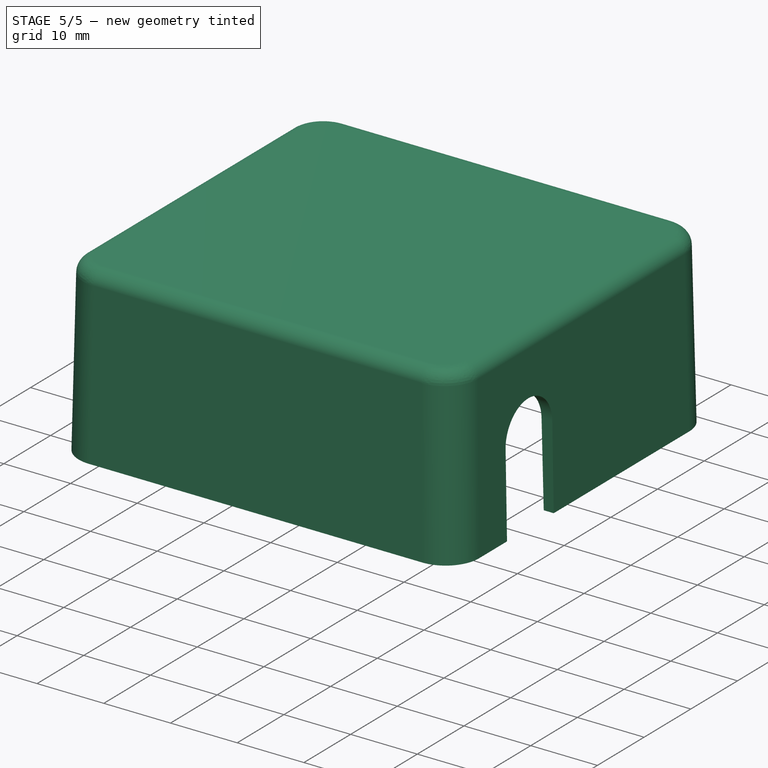
[diagram: stage 5 of 5 — iso view after this stage's code; geometry added in this stage tinted green]
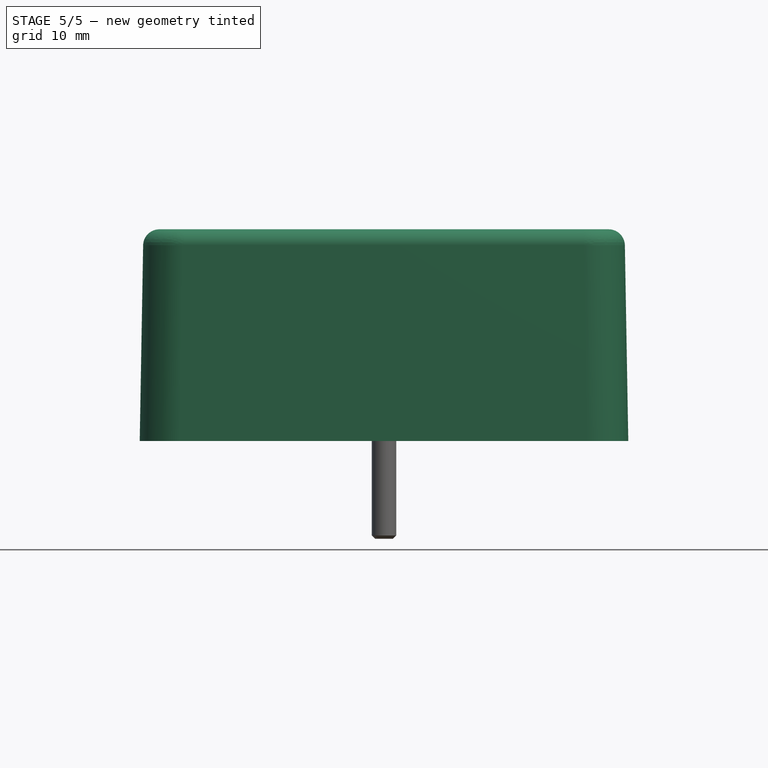
[diagram: stage 5 of 5 — front view after this stage's code; geometry added in this stage tinted green]
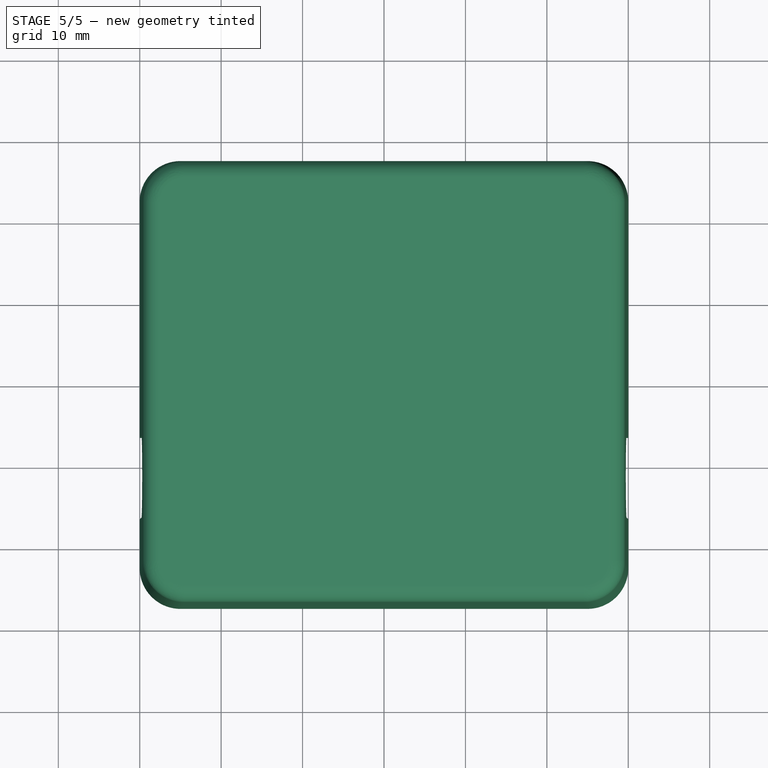
[diagram: stage 5 of 5 — top view after this stage's code; geometry added in this stage tinted green]
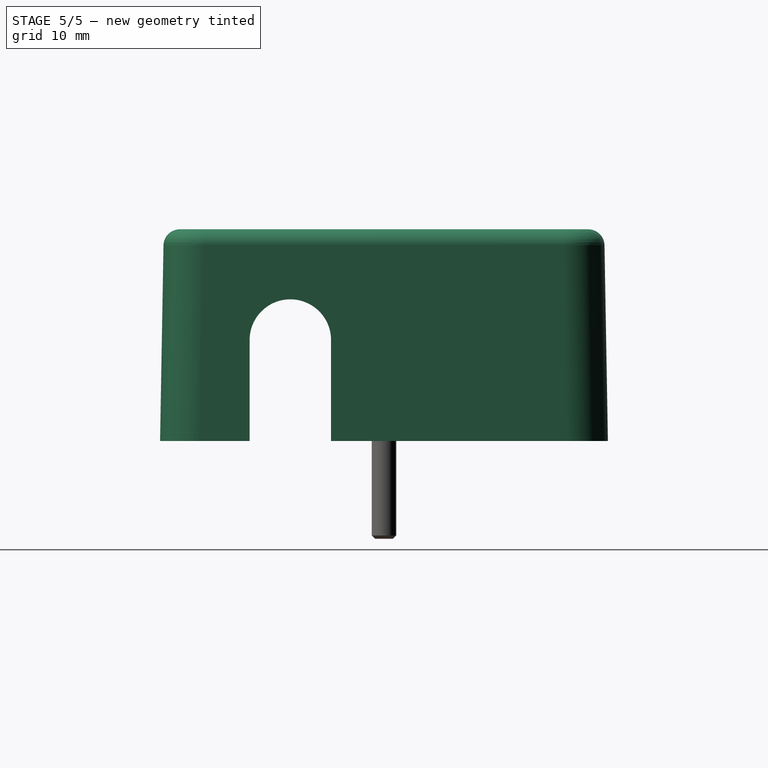
[diagram: stage 5 of 5 — right view after this stage's code; geometry added in this stage tinted green]
FEATURE [PartDesign::CoordinateSystem] Local_CS
  AttacherType = Attacher::AttachEngine3D
FEATURE [Part::Feature] Pcb
  Placement = pos=(-148.5,98.5,0) rot=(0,0,1;0rad)
  shape: bbox 52 x 48 x 1.6 mm, 42 faces (baked)
FEATURE [Sketcher::SketchObject] PCB_Sketch
  sketch-geometry (8):
    g0: LineSegment StartX=-19 StartY=24 StartZ=0 EndX=19 EndY=24 EndZ=0
    g1: LineSegment StartX=26 StartY=17 StartZ=0 EndX=26 EndY=-17 EndZ=0
    g2: LineSegment StartX=19 StartY=-24 StartZ=0 EndX=-19 EndY=-24 EndZ=0
    g3: LineSegment StartX=-26 StartY=-17 StartZ=0 EndX=-26 EndY=17 EndZ=0
    g4: ArcOfCircle CenterX=-26 CenterY=24 CenterZ=0 NormalX=0 NormalY=0 NormalZ=1 AngleXU=0 Radius=7 StartAngle=4.71239 EndAngle=6.28319
    g5: ArcOfCircle CenterX=26 CenterY=24 CenterZ=0 NormalX=0 NormalY=0 NormalZ=1 AngleXU=0 Radius=7 StartAngle=3.14159 EndAngle=4.71239
    g6: ArcOfCircle CenterX=-26 CenterY=-24 CenterZ=0 NormalX=0 NormalY=0 NormalZ=1 AngleXU=0 Radius=7 StartAngle=0 EndAngle=1.5708
    g7: ArcOfCircle CenterX=26 CenterY=-24 CenterZ=0 NormalX=0 NormalY=0 NormalZ=1 AngleXU=0 Radius=7 StartAngle=1.5708 EndAngle=3.14159
  constraints (8):
    c: Coincident(g3,g6)
    c: Coincident(g3,g4)
    c: Coincident(g2,g6)
    c: Coincident(g0,g4)
    c: Coincident(g2,g7)
    c: Coincident(g0,g5)
    c: Coincident(g1,g7)
    c: Coincident(g1,g5)
FEATURE [App::Part] Board_Geoms
  Group = -> [Local_CS,Pcb,PCB_Sketch]
  Origin = -> Origin
FEATURE [Part::Feature] Shape  label="OUTPUT_C-5-1814400-1_5DBF4BDE"
  Placement = pos=(-32.5,-11.5,7.3) rot=(-0.57735,0.57735,0.57735;4.18879rad)
  shape: bbox 14.26 x 6.532 x 13.63 mm, 169 faces (baked)
FEATURE [Part::Feature] Shape001  label="INPUT_C-5-1814400-1_5DBF4C02"
  Placement = pos=(32.5,-11.5,7.3) rot=(0.57735,0.57735,0.57735;2.0944rad)
  shape: bbox 14.26 x 6.532 x 13.63 mm, 169 faces (baked)
FEATURE [Part::Feature] Shape002  label="C1_C_0805_2012Metric_5DBF4A7F"
  Placement = pos=(-5.319,14.788,0) rot=(0,0,1;3.14159rad)
  shape: bbox 2 x 1.25 x 1.25 mm, 28 faces (baked)
FEATURE [Part::Feature] Shape003  label="C2_C_0805_2012Metric_5DBF4A90"
  Placement = pos=(10.706,-16.937,0) rot=(0,0,1;1.5708rad)
  shape: bbox 1.25 x 2 x 1.25 mm, 28 faces (baked)
FEATURE [Part::Feature] Shape004  label="C3_C_0805_2012Metric_5DBF4AA1"
  Placement = pos=(6.706,-16.937,0) rot=(0,0,1;1.5708rad)
  shape: bbox 1.25 x 2 x 1.25 mm, 28 faces (baked)
FEATURE [Part::Feature] Shape005  label="C4_C_0805_2012Metric_5DBF4AB2"
  Placement = pos=(-10.694,11.313,0) rot=(0,0,-1;1.5708rad)
  shape: bbox 1.25 x 2 x 1.25 mm, 28 faces (baked)
FEATURE [Part::Feature] Shape006  label="C5_C_0805_2012Metric_5DBF4AC3"
  Placement = pos=(2.706,-16.937,0) rot=(0,0,1;1.5708rad)
  shape: bbox 1.25 x 2 x 1.25 mm, 28 faces (baked)
FEATURE [Part::Feature] Shape007  label="C6_C_0805_2012Metric_5DBF4AD4"
  Placement = pos=(-9.894,15.288,0) rot=(0,0,1;0rad)
  shape: bbox 2 x 1.25 x 1.25 mm, 28 faces (baked)
FEATURE [Part::Feature] Shape008  label="C7_C_0805_2012Metric_5DBF4AE5"
  Placement = pos=(-5.694,-2.037,0) rot=(0,0,-1;1.5708rad)
  shape: bbox 1.25 x 2 x 1.25 mm, 28 faces (baked)
FEATURE [Part::Feature] Shape009  label="C8_C_0805_2012Metric_5DBF4AF6"
  Placement = pos=(-17.969,18.088,0) rot=(0,0,1;0rad)
  shape: bbox 2 x 1.25 x 1.25 mm, 28 faces (baked)
FEATURE [Part::Feature] Shape010  label="C9_C_0805_2012Metric_5DBF4B07"
  Placement = pos=(-1.294,-16.937,0) rot=(0,0,1;1.5708rad)
  shape: bbox 1.25 x 2 x 1.25 mm, 28 faces (baked)
FEATURE [Part::Feature] Shape011  label="C10_C_0805_2012Metric_5DBF4B18"
  Placement = pos=(-6.194,-10.737,0) rot=(0,0,1;1.5708rad)
  shape: bbox 1.25 x 2 x 1.25 mm, 28 faces (baked)
FEATURE [Part::Feature] Shape012  label="C11_C_0805_2012Metric_5DBF4B29"
  Placement = pos=(-14.194,18.088,0) rot=(0,0,1;0rad)
  shape: bbox 2 x 1.25 x 1.25 mm, 28 faces (baked)
FEATURE [Part::Feature] Shape013  label="C12_C_0805_2012Metric_5DBF4B3A"
  Placement = pos=(-5.294,-16.937,0) rot=(0,0,1;1.5708rad)
  shape: bbox 1.25 x 2 x 1.25 mm, 28 faces (baked)
FEATURE [Part::Feature] Shape014  label="C13_C_0805_2012Metric_5DBF4B4B"
  Placement = pos=(10.131,-6.212,0) rot=(0,0,1;0rad)
  shape: bbox 2 x 1.25 x 1.25 mm, 28 faces (baked)
FEATURE [Part::Feature] Shape015  label="C14_C_0805_2012Metric_5DBF4B5C"
  Placement = pos=(-13.094,0.088,0) rot=(0,0,1;3.14159rad)
  shape: bbox 2 x 1.25 x 1.25 mm, 28 faces (baked)
FEATURE [Part::Feature] Shape016  label="C15_C_0805_2012Metric_5DBF4B6D"
  Placement = pos=(-9.094,-3.012,0) rot=(0,0,1;1.5708rad)
  shape: bbox 1.25 x 2 x 1.25 mm, 28 faces (baked)
FEATURE [Part::Feature] Shape017  label="C16_C_0805_2012Metric_5DBF4B7E"
  Placement = pos=(10.081,-11.612,0) rot=(0,0,1;0rad)
  shape: bbox 2 x 1.25 x 1.25 mm, 28 faces (baked)
FEATURE [Part::Feature] Shape018  label="C17_C_0805_2012Metric_5DBF4B8F"
  Placement = pos=(0.606,-1.987,0) rot=(0,0,-1;1.5708rad)
  shape: bbox 1.25 x 2 x 1.25 mm, 28 faces (baked)
FEATURE [Part::Feature] Shape019  label="D1_SOT_23_5DBF4BA4"
  Placement = pos=(-9.394,-10.912,0) rot=(0,0,1;1.5708rad)
  shape: bbox 3 x 2.5 x 1.2 mm, 76 faces (baked)
FEATURE [Part::Feature] Shape020  label=""+5V IN"_PinHeader_1x02_P254mm_Vertical_5DBF4BBA"
  Placement = pos=(-6.594,11.588,0) rot=(0,0,1;1.5708rad)
  shape: bbox 5.08 x 2.54 x 11.54 mm, 52 faces (baked)
FEATURE [Part::Feature] Shape021  label=""DIG SUPP IN"_PinHeader_1x02_P254mm_Vertical_5DBF4C18"
  Placement = pos=(3.706,3.0722,0) rot=(0,0,-1;1.5708rad)
  shape: bbox 5.08 x 2.54 x 11.54 mm, 52 faces (baked)
FEATURE [Part::Feature] Shape022  label="+4.5V_PinHeader_1x03_P254mm_Vertical_5DBF4C2F"
  Placement = pos=(8.98,8.584,0) rot=(0,0,-1;1.5708rad)
  shape: bbox 7.62 x 2.54 x 11.54 mm, 76 faces (baked)
FEATURE [Part::Feature] Shape023  label=""SPI INTERFACE"_PinHeader_1x06_P254mm_Vertical_5DBF4C49"
  Placement = pos=(21.426,3.088,0) rot=(0,0,-1;1.5708rad)
  shape: bbox 15.24 x 2.54 x 11.54 mm, 148 faces (baked)
FEATURE [Part::Feature] Shape024  label="R1_R_0805_2012Metric_5DBF4C6C"
  Placement = pos=(12.706,-16.937,0) rot=(0,0,-1;1.5708rad)
  shape: bbox 1.2 x 2 x 0.45 mm, 26 faces (baked)
FEATURE [Part::Feature] Shape025  label="R2_R_0805_2012Metric_5DBF4C7D"
  Placement = pos=(8.706,-16.937,0) rot=(0,0,-1;1.5708rad)
  shape: bbox 1.2 x 2 x 0.45 mm, 26 faces (baked)
FEATURE [Part::Feature] Shape026  label="R3_R_0805_2012Metric_5DBF4C8E"
  Placement = pos=(4.706,-16.937,0) rot=(0,0,-1;1.5708rad)
  shape: bbox 1.2 x 2 x 0.45 mm, 26 faces (baked)
FEATURE [Part::Feature] Shape027  label="R4_R_0805_2012Metric_5DBF4C9F"
  Placement = pos=(0.706,-16.937,0) rot=(0,0,-1;1.5708rad)
  shape: bbox 1.2 x 2 x 0.45 mm, 26 faces (baked)
FEATURE [Part::Feature] Shape028  label="R5_R_0805_2012Metric_5DBF4CB0"
  Placement = pos=(-1.494,-2.012,0) rot=(0,0,1;1.5708rad)
  shape: bbox 1.2 x 2 x 0.45 mm, 26 faces (baked)
FEATURE [Part::Feature] Shape029  label="R6_R_0805_2012Metric_5DBF4CC1"
  Placement = pos=(-3.594,-2.037,0) rot=(0,0,-1;1.5708rad)
  shape: bbox 1.2 x 2 x 0.45 mm, 26 faces (baked)
FEATURE [Part::Feature] Shape030  label="R7_R_0805_2012Metric_5DBF4CD2"
  Placement = pos=(-3.294,-16.937,0) rot=(0,0,-1;1.5708rad)
  shape: bbox 1.2 x 2 x 0.45 mm, 26 faces (baked)
FEATURE [Part::Feature] Shape031  label="R8_R_0805_2012Metric_5DBF4CE3"
  Placement = pos=(-4.094,-10.712,0) rot=(0,0,1;1.5708rad)
  shape: bbox 1.2 x 2 x 0.45 mm, 26 faces (baked)
FEATURE [Part::Feature] Shape032  label="R9_R_0805_2012Metric_5DBF4CF4"
  Placement = pos=(-17.969,16.088,0) rot=(0,0,1;0rad)
  shape: bbox 2 x 1.2 x 0.45 mm, 26 faces (baked)
FEATURE [Part::Feature] Shape033  label="R10_R_0805_2012Metric_5DBF4D05"
  Placement = pos=(-14.219,16.088,0) rot=(0,0,1;0rad)
  shape: bbox 2 x 1.2 x 0.45 mm, 26 faces (baked)
FEATURE [Part::Feature] Shape034  label="R11_R_0805_2012Metric_5DBF4D16"
  Placement = pos=(-7.294,-16.937,0) rot=(0,0,-1;1.5708rad)
  shape: bbox 1.2 x 2 x 0.45 mm, 26 faces (baked)
FEATURE [Part::Feature] Shape035  label="R12_R_0805_2012Metric_5DBF4D27"
  Placement = pos=(-17.794,-4.537,0) rot=(0,0,1;1.5708rad)
  shape: bbox 1.2 x 2 x 0.45 mm, 26 faces (baked)
FEATURE [Part::Feature] Shape036  label="R13_R_0805_2012Metric_5DBF4D38"
  Placement = pos=(-17.794,-0.837,0) rot=(0,0,1;1.5708rad)
  shape: bbox 1.2 x 2 x 0.45 mm, 26 faces (baked)
FEATURE [Part::Feature] tma_5_12vin  label="tma-5&12vin"
  Placement = pos=(-11.444,5.288,10) rot=(0,1,0;3.14159rad)
  shape: bbox 19.5 x 6.1 x 13.4 mm, 70 faces, 11 solids (baked)
FEATURE [Part::Feature] Shape037  label="U2_TSSOP_28_44x97mm_P065mm_5DBF4D82"
  Placement = pos=(2.706,-8.912,0) rot=(0,0,1;1.5708rad)
  shape: bbox 9.7 x 6.4 x 1.1 mm, 456 faces (baked)
FEATURE [Part::Feature] Shape038  label="U3_SOT_23_6_5DBF4D98"
  Placement = pos=(-14.294,12.288,0) rot=(0,0,1;1.5708rad)
  shape: bbox 2.9 x 2.8 x 1.55 mm, 124 faces (baked)
FEATURE [Part::Feature] Shape039  label="U4_SOT_23_5_5DBF4DAD"
  Placement = pos=(-13.094,-3.012,0) rot=(0,0,1;0rad)
  shape: bbox 2.8 x 2.9 x 1.55 mm, 109 faces (baked)
FEATURE [App::Part] Top
  Group = -> [Shape,Shape001,Shape002,Shape003,Shape004,Shape005,Shape006,Shape007,Shape008,Shape009,Shape010,Shape011,Shape012,Shape013,Shape014,Shape015,Shape016,Shape017,Shape018,Shape019,Shape020,Shape021,Shape022,Shape023,Shape024,Shape025,Shape026,Shape027,Shape028,Shape029,Shape030,Shape031,Shape032,Shape033,Shape034,Shape035,Shape036,tma_5_12vin,Shape037,Shape038,Shape039]
  Origin = -> Origin003
FEATURE [App::Part] Step_Models
  Group = -> [Top]
  Origin = -> Origin002
FEATURE [App::Part] Board  label="MA_TIA"
  Group = -> [Board_Geoms,Step_Models]
  Origin = -> Origin001
FEATURE [Part::Feature] Part__Feature003  label="SC1550 (screw M3.5-0.6X 12mm FH)001"
  Placement = pos=(25,-22.5,-1.7) rot=(-0.156786,0.698362,-0.698362;2.83055rad)
  shape: bbox 6.634 x 6.634 x 11.69 mm, 25 faces (baked)
FEATURE [Part::Feature] Part__Feature004  label="SC1550 (screw M3.5-0.6X 12mm FH)002"
  Placement = pos=(-25,22.5,-1.7) rot=(-0.934124,-0.2524,0.2524;1.63889rad)
  shape: bbox 6.634 x 6.634 x 11.69 mm, 25 faces (baked)
FEATURE [Part::Feature] Part__Feature  label="1550Q BOX"
  shape: bbox 60 x 55 x 26.04 mm, 345 faces (baked)
FEATURE [Part::Feature] Part__Feature005  label="SC1550 (screw M3.5-0.6X 12mm FH)003"
  Placement = pos=(25,22.5,-1.7) rot=(-0.851261,-0.371049,0.371049;1.73114rad)
  shape: bbox 6.634 x 6.634 x 11.69 mm, 25 faces (baked)
FEATURE [Part::Feature] Part__Feature002  label="SC1550 (screw M3.5-0.6X 12mm FH)"
  Placement = pos=(-25,-22.5,-1.7) rot=(-0.214247,-0.690687,0.690687;2.71948rad)
  shape: bbox 6.634 x 6.634 x 11.69 mm, 25 faces (baked)
FEATURE [Part::Feature] Part__Feature001  label="1550Q LID"
  Placement = pos=(0,0,1e-15) rot=(0,0,1;3.14159rad)
  shape: bbox 60 x 55 x 7.002 mm, 416 faces (baked)
FEATURE [Sketcher::SketchObject] Sketch
  MapMode = 5
  Placement = pos=(0,0,0) rot=(0.57735,0.57735,0.57735;2.0944rad)
  Support = -> [YZ_Plane005]
  sketch-geometry (4):
    g0: ArcOfCircle CenterX=-11.5031 CenterY=-7.81737 CenterZ=0 NormalX=0 NormalY=0 NormalZ=1 AngleXU=0 Radius=5 StartAngle=3.14159 EndAngle=6.28319
    g1: ArcOfCircle CenterX=-11.5031 CenterY=12.4001 CenterZ=0 NormalX=0 NormalY=0 NormalZ=1 AngleXU=0 Radius=5 StartAngle=0 EndAngle=3.14159
    g2: LineSegment StartX=-6.50314 StartY=-7.81737 StartZ=0 EndX=-6.50314 EndY=12.4001 EndZ=0
    g3: LineSegment StartX=-16.5031 StartY=-7.81737 StartZ=0 EndX=-16.5031 EndY=12.4001 EndZ=0
  constraints (7):
    c: Tangent(g0,g3) = 1.5708
    c: Tangent(g0,g2) = -1.5708
    c: Tangent(g2,g1) = -1.5708
    c: Tangent(g3,g1) = 1.5708
    c: Vertical(g2)
    c: Equal(g0,g1)
    c: Radius(g1) = 5
FEATURE [PartDesign::Pad] Pad
  Length = 50
  Length2 = 50
  Placement = pos=(0,0,0) rot=(0.57735,0.57735,0.57735;2.0944rad)
  Profile = -> Sketch
  Type = 4
FEATURE [PartDesign::Body] Body
  Group = -> [Sketch,Pad]
  Origin = -> Origin005
  Tip = -> Pad
FEATURE [Part::Cut] Cut  label="1550Q BOX CUT"
  Base = -> Part__Feature
  Tool = -> Body
FEATURE [App::Part] _550Q  label="Gehaeuse Hammond 1550Q"
  Group = -> [Part__Feature,Part__Feature001,Part__Feature002,Part__Feature003,Part__Feature004,Part__Feature005,Body,Cut]
  Origin = -> Origin004
  Placement = pos=(0,0,-5) rot=(1,0,0;0rad)
FEATURE [Sketcher::SketchObject] Sketch001
  MapMode = 5
  Placement = pos=(0,0,0) rot=(1,0,0;1.5708rad)
  sketch-geometry (7):
    g0: LineSegment StartX=1.45 StartY=3 StartZ=0 EndX=2.75 EndY=3 EndZ=0
    g1: LineSegment StartX=2.75 StartY=3 StartZ=0 EndX=2.75 EndY=0 EndZ=0
    g2: LineSegment StartX=2.75 StartY=0 StartZ=0 EndX=1.5 EndY=0 EndZ=0
    g3: LineSegment StartX=1.5 StartY=0 StartZ=0 EndX=1.5 EndY=-12 EndZ=0
    g4: LineSegment StartX=1.5 StartY=-12 StartZ=0 EndX=0 EndY=-12 EndZ=0
    g5: LineSegment StartX=0 StartY=-12 StartZ=0 EndX=0 EndY=1.55 EndZ=0
    g6: LineSegment StartX=0 StartY=1.55 StartZ=0 EndX=1.45 EndY=3 EndZ=0
  constraints (21):
    c: Horizontal(g0)
    c: Coincident(g0,g1)
    c: Vertical(g1)
    c: Coincident(g1,g2)
    c: Horizontal(g2)
    c: Coincident(g2,g3)
    c: Vertical(g3)
    c: Coincident(g3,g4)
    c: Horizontal(g4)
    c: Coincident(g4,g5)
    c: Vertical(g5)
    c: Coincident(g0,g6)
    c: DistanceX(g4) = -1.5
    c: DistanceY(g1,g3) = -12
    c: Angle(g6,g0) = 2.35619
    c: DistanceY(g1) = -3
    c: DistanceX(g0,g5) = -2.75
    c: DistanceX(g0,g5) = -1.45
    c: PointOnObject(g1,g-1)
    c: PointOnObject(g5,g-2)
    c: Coincident(g6,g5)
FEATURE [PartDesign::Revolution] Revolution  label="main-body"
  Angle = 360
  Axis = (0,0,1)
  Base = (0,0,0)
  Placement = pos=(0,0,0) rot=(1,0,0;1.5708rad)
  Profile = -> Sketch001
  ReferenceAxis = -> Sketch001 [V_Axis]
  Reversed = true
FEATURE [Part::Cut] Cut001
  Base = -> Revolution
  Tool = -> Pocket
FEATURE [Part::Chamfer] Chamfer
  Base = -> Cut001
  Edges = 1 edges r=0.4: [Edge27]
FEATURE [Part::Chamfer] Chamfer001
  Base = -> Chamfer
  Edges = 2 edges r=0.1: [Edge6,Edge7]
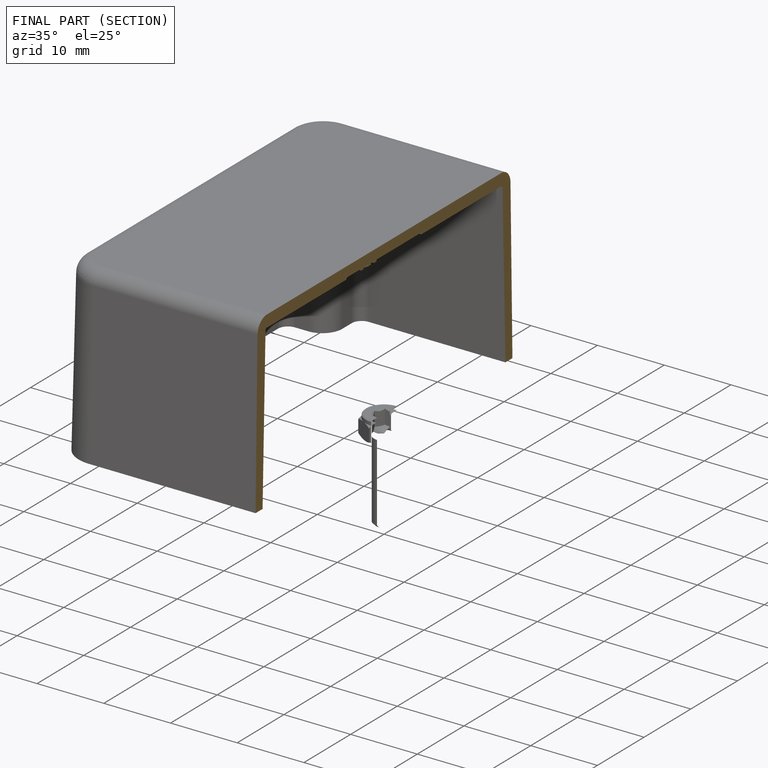
[diagram: finished part — half-section view (interior)]
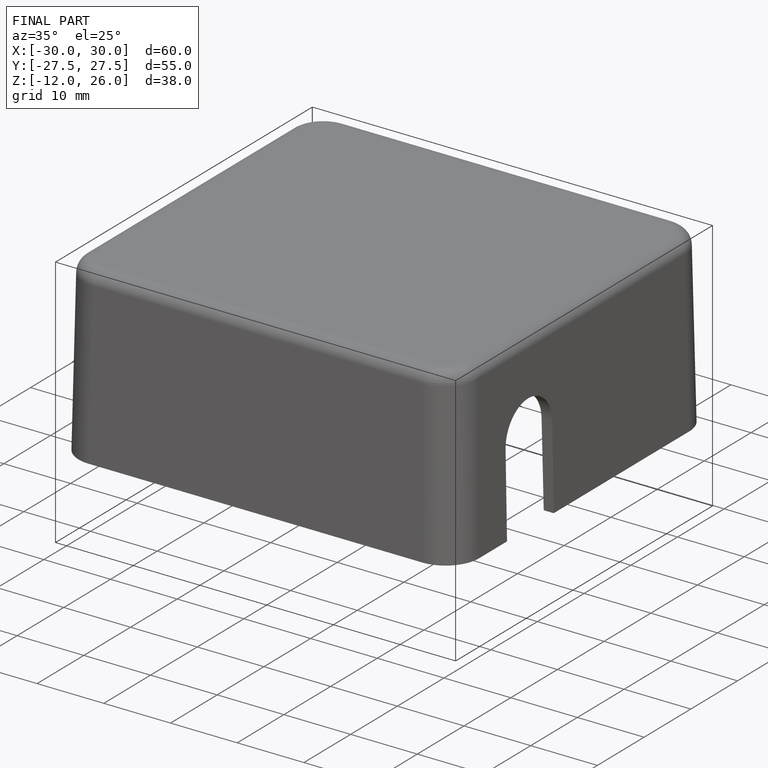
[diagram: finished part — iso view with bounding-box wireframe]
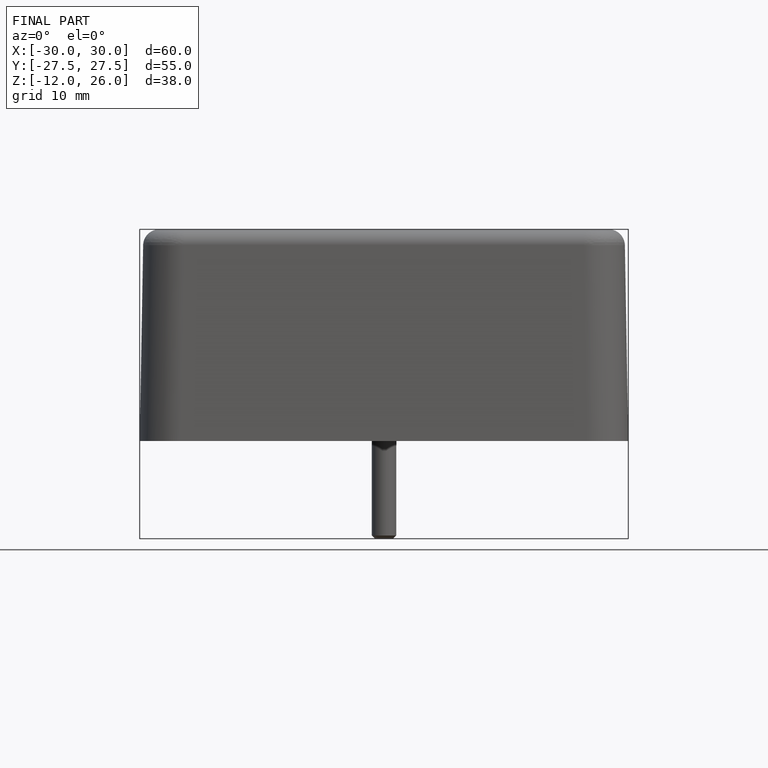
[diagram: finished part — front view with bounding-box wireframe]
